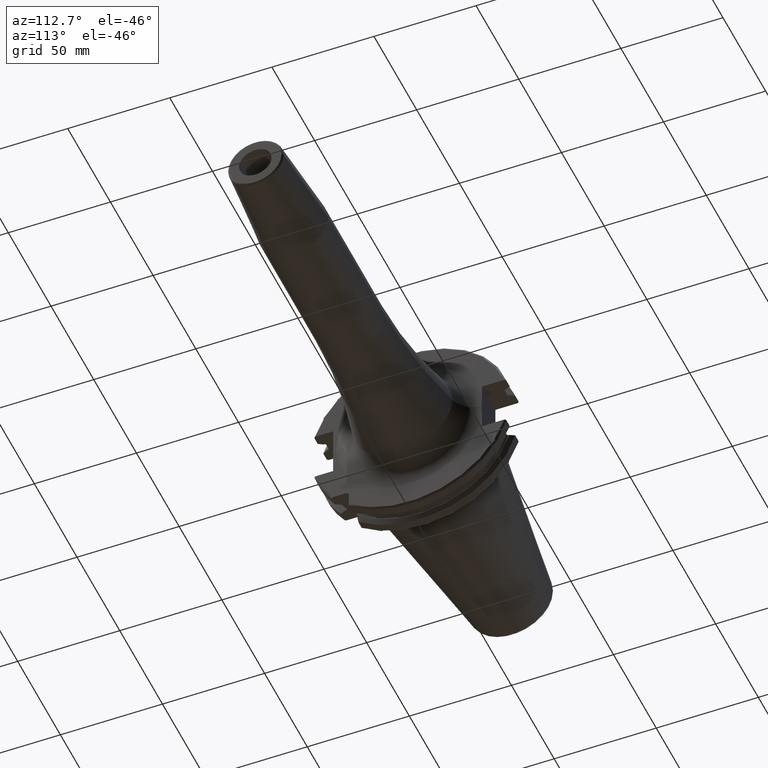
[diagram: clean part render]
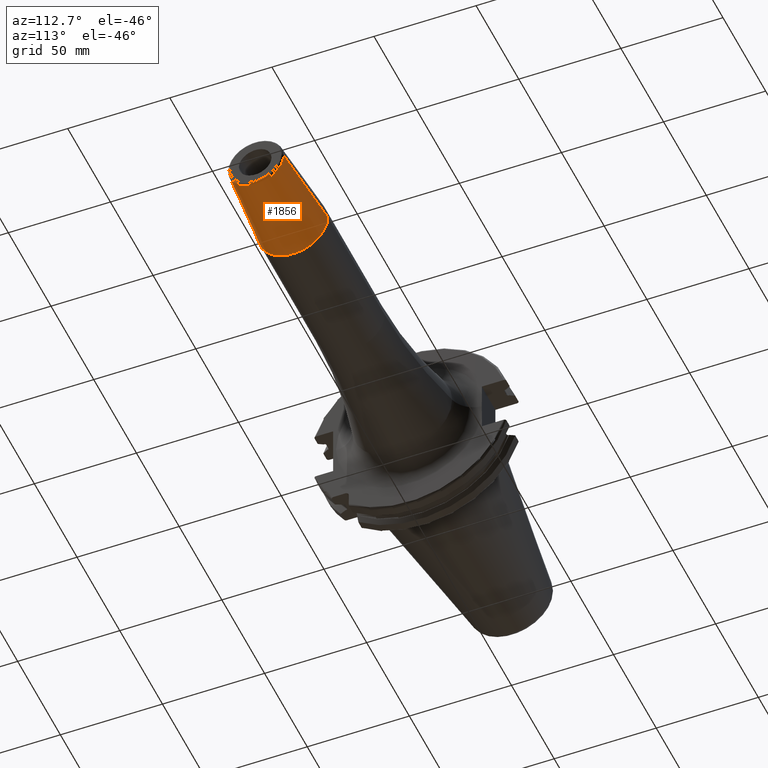
[diagram: same view with one face highlighted and labeled with its STEP entity id]
A machine part, auxiliary view. The second image highlights one B-rep face of the part: STEP entity #1856.
In plain terms, the highlighted conical surface has half-angle 4.5 deg.
Its self-contained STEP definition (entity closure, byte-faithful):
#225=CARTESIAN_POINT('',(1.555282834234E2,0.E0,0.E0));
#226=DIRECTION('',(-1.E0,0.E0,0.E0));
#227=DIRECTION('',(0.E0,1.E0,0.E0));
#228=AXIS2_PLACEMENT_3D('',#225,#226,#227);
#259=CARTESIAN_POINT('',(1.990784590957E2,0.E0,0.E0));
#260=DIRECTION('',(-1.E0,0.E0,0.E0));
#261=DIRECTION('',(0.E0,1.E0,0.E0));
#262=AXIS2_PLACEMENT_3D('',#259,#260,#261);
#264=DIRECTION('',(-9.969173337331E-1,7.845909572784E-2,6.257929142752E-14));
#265=VECTOR('',#264,4.368484145948E1);
#266=CARTESIAN_POINT('',(1.990784590957E2,1.357252684207E1,
-2.731684525099E-12));
#267=LINE('',#266,#265);
#268=DIRECTION('',(-9.969173337331E-1,-7.845909572784E-2,-6.256993807104E-14));
#269=VECTOR('',#268,4.368484145948E1);
#270=CARTESIAN_POINT('',(1.990784590957E2,-1.357252684207E1,
2.731275925204E-12));
#271=LINE('',#270,#269);
#1470=CARTESIAN_POINT('',(1.555282834234E2,1.7E1,0.E0));
#1471=CARTESIAN_POINT('',(1.555282834234E2,-1.7E1,0.E0));
#1472=VERTEX_POINT('',#1470);
#1473=VERTEX_POINT('',#1471);
#1474=CARTESIAN_POINT('',(1.990784590957E2,1.357252684207E1,0.E0));
#1475=CARTESIAN_POINT('',(1.990784590957E2,-1.357252684207E1,0.E0));
#1476=VERTEX_POINT('',#1474);
#1477=VERTEX_POINT('',#1475);
#1845=CARTESIAN_POINT('',(1.773033712596E2,0.E0,0.E0));
#1846=DIRECTION('',(-1.E0,0.E0,0.E0));
#1847=DIRECTION('',(0.E0,1.E0,0.E0));
#1848=AXIS2_PLACEMENT_3D('',#1845,#1846,#1847);
#1849=CONICAL_SURFACE('',#1848,1.528626342104E1,4.5E0);
#1850=ORIENTED_EDGE('',*,*,#1836,.F.);
#1851=ORIENTED_EDGE('',*,*,#1811,.T.);
#1852=ORIENTED_EDGE('',*,*,#1781,.T.);
#1853=ORIENTED_EDGE('',*,*,#1808,.F.);
#1854=EDGE_LOOP('',(#1850,#1851,#1852,#1853));
#1855=FACE_OUTER_BOUND('',#1854,.F.);
#1856=ADVANCED_FACE('',(#1855),#1849,.T.);
#229=CIRCLE('',#228,1.7E1);
#263=CIRCLE('',#262,1.357252684207E1);
#1781=EDGE_CURVE('',#1472,#1473,#229,.T.);
#1808=EDGE_CURVE('',#1477,#1473,#271,.T.);
#1811=EDGE_CURVE('',#1476,#1472,#267,.T.);
#1836=EDGE_CURVE('',#1476,#1477,#263,.T.);